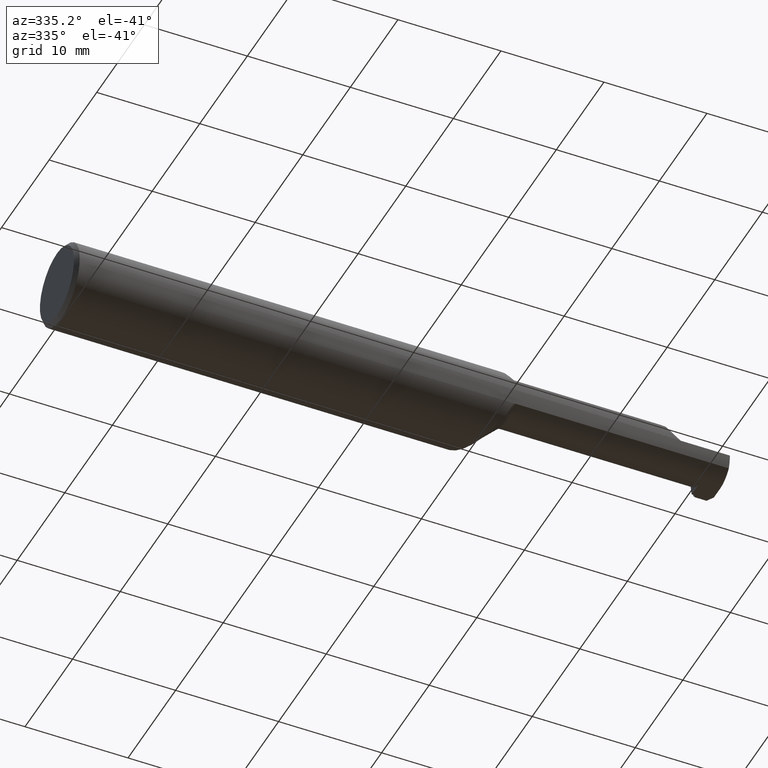
[diagram: clean part render]
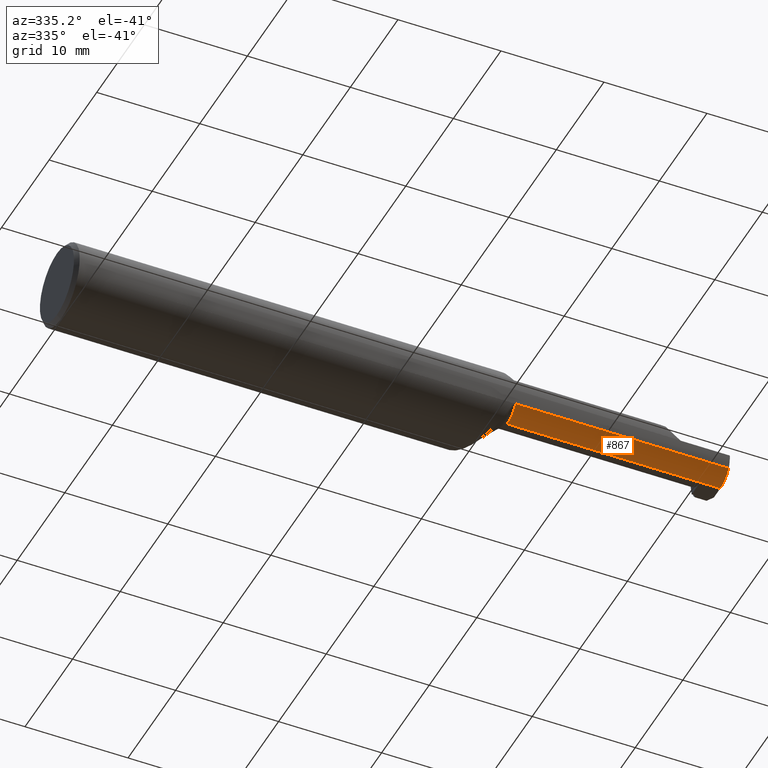
[diagram: same view with one face highlighted and labeled with its STEP entity id]
A machine part, auxiliary view. The second image highlights one B-rep face of the part: STEP entity #867.
In plain terms, the highlighted cylindrical surface (edge-blend (fillet) strip) has radius 2.2352 mm, axis along (-1, -0, -0).
Its self-contained STEP definition (entity closure, byte-faithful):
#14 = VECTOR ( 'NONE', #52, 39.37007874015748143 ) ;
#27 = LINE ( 'NONE', #350, #851 ) ;
#52 = DIRECTION ( 'NONE',  ( -1.000000000000000000, -0.000000000000000000, -0.000000000000000000 ) ) ;
#69 = CARTESIAN_POINT ( 'NONE',  ( 2.423000000000000043, -0.07609999999999980669, -0.08800000000000000877 ) ) ;
#156 = EDGE_CURVE ( 'NONE', #592, #994, #950, .T. ) ;
#165 = DIRECTION ( 'NONE',  ( 1.000000000000000000, 0.000000000000000000, 0.000000000000000000 ) ) ;
#169 = AXIS2_PLACEMENT_3D ( 'NONE', #416, #485, #481 ) ;
#178 = FACE_OUTER_BOUND ( 'NONE', #869, .T. ) ;
#232 = CARTESIAN_POINT ( 'NONE',  ( 1.675000000000000044, -0.07609999999999979281, -0.08799999999999999489 ) ) ;
#243 = CYLINDRICAL_SURFACE ( 'NONE', #169, 0.08799999999999999489 ) ;
#350 = CARTESIAN_POINT ( 'NONE',  ( 2.500000000000000000, -0.07609999999999980669, -0.08800000000000000877 ) ) ;
#416 = CARTESIAN_POINT ( 'NONE',  ( 1.675000000000000044, -0.07609999999999980669, 0.000000000000000000 ) ) ;
#435 = CARTESIAN_POINT ( 'NONE',  ( 2.500000000000000000, -0.1472695137976347546, -0.05175809410911733771 ) ) ;
#476 = CARTESIAN_POINT ( 'NONE',  ( 2.048999999999999932, -0.1472695137976348101, -0.05175809410911725444 ) ) ;
#481 = DIRECTION ( 'NONE',  ( 0.000000000000000000, 0.000000000000000000, 1.000000000000000000 ) ) ;
#485 = DIRECTION ( 'NONE',  ( -1.000000000000000000, -0.000000000000000000, -0.000000000000000000 ) ) ;
#525 = AXIS2_PLACEMENT_3D ( 'NONE', #647, #165, #668 ) ;
#528 = CARTESIAN_POINT ( 'NONE',  ( 2.500000000000000000, -0.07609999999999980669, -0.08800000000000000877 ) ) ;
#552 = ORIENTED_EDGE ( 'NONE', *, *, #789, .T. ) ;
#567 = CARTESIAN_POINT ( 'NONE',  ( 2.500000000000000000, -0.07609999999999980669, 0.000000000000000000 ) ) ;
#592 = VERTEX_POINT ( 'NONE', #69 ) ;
#623 = DIRECTION ( 'NONE',  ( -1.000000000000000000, -0.000000000000000000, -0.000000000000000000 ) ) ;
#647 = CARTESIAN_POINT ( 'NONE',  ( 1.685355339059326996, -0.07609999999999980669, 0.000000000000000000 ) ) ;
#668 = DIRECTION ( 'NONE',  ( 0.000000000000000000, 0.000000000000000000, 1.000000000000000000 ) ) ;
#684 = CARTESIAN_POINT ( 'NONE',  ( 1.685355339059326996, -0.07609999999999979281, -0.08799999999999999489 ) ) ;
#711 = CIRCLE ( 'NONE', #749, 0.08799999999999999489 ) ;
#714 = ORIENTED_EDGE ( 'NONE', *, *, #968, .F. ) ;
#742 = ORIENTED_EDGE ( 'NONE', *, *, #156, .F. ) ;
#748 = CIRCLE ( 'NONE', #525, 0.08799999999999999489 ) ;
#749 = AXIS2_PLACEMENT_3D ( 'NONE', #567, #813, #828 ) ;
#754 = ORIENTED_EDGE ( 'NONE', *, *, #1043, .T. ) ;
#767 = CARTESIAN_POINT ( 'NONE',  ( 1.685355339059326996, -0.1472695137976348101, -0.05175809410911725444 ) ) ;
#789 = EDGE_CURVE ( 'NONE', #967, #994, #748, .T. ) ;
#807 = ORIENTED_EDGE ( 'NONE', *, *, #881, .F. ) ;
#813 = DIRECTION ( 'NONE',  ( 1.000000000000000000, -0.000000000000000000, -0.000000000000000000 ) ) ;
#828 = DIRECTION ( 'NONE',  ( 0.000000000000000000, 0.000000000000000000, 1.000000000000000000 ) ) ;
#831 = VECTOR ( 'NONE', #623, 39.37007874015748143 ) ;
#845 = DIRECTION ( 'NONE',  ( -1.000000000000000000, -0.000000000000000000, -0.000000000000000000 ) ) ;
#851 = VECTOR ( 'NONE', #845, 39.37007874015748143 ) ;
#867 = ADVANCED_FACE ( 'NONE', ( #178 ), #243, .T. ) ;
#869 = EDGE_LOOP ( 'NONE', ( #742, #714, #807, #754, #552 ) ) ;
#881 = EDGE_CURVE ( 'NONE', #942, #984, #711, .T. ) ;
#942 = VERTEX_POINT ( 'NONE', #435 ) ;
#950 = LINE ( 'NONE', #232, #831 ) ;
#967 = VERTEX_POINT ( 'NONE', #767 ) ;
#968 = EDGE_CURVE ( 'NONE', #984, #592, #27, .T. ) ;
#984 = VERTEX_POINT ( 'NONE', #528 ) ;
#994 = VERTEX_POINT ( 'NONE', #684 ) ;
#1017 = LINE ( 'NONE', #476, #14 ) ;
#1043 = EDGE_CURVE ( 'NONE', #942, #967, #1017, .T. ) ;